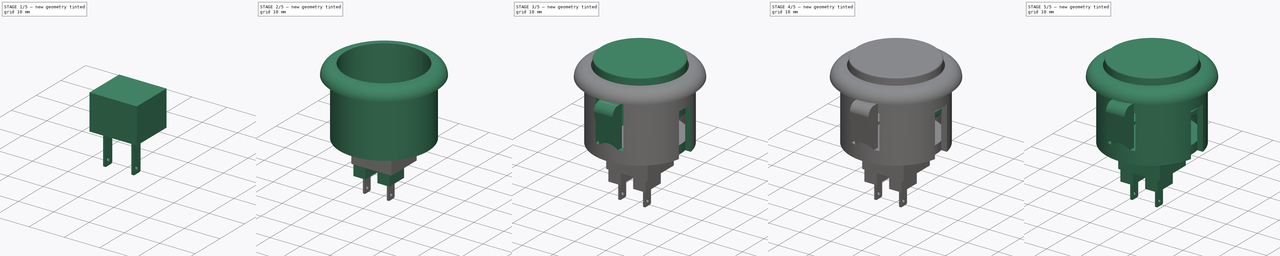
[diagram: build sequence overview — one tinted view per stage of 5, left to right]
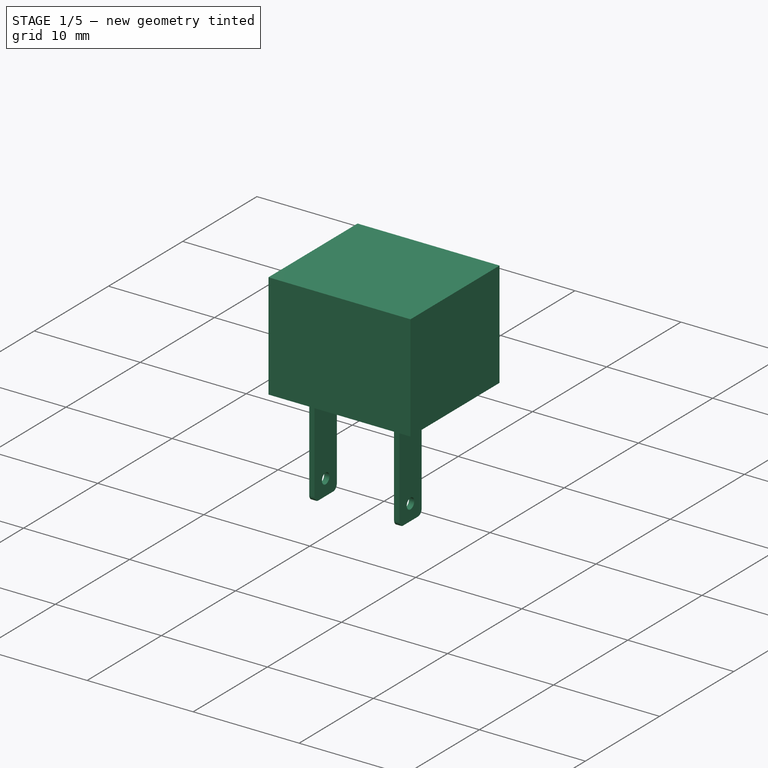
[diagram: stage 1 of 5 — iso view after this stage's code; geometry added in this stage tinted green]
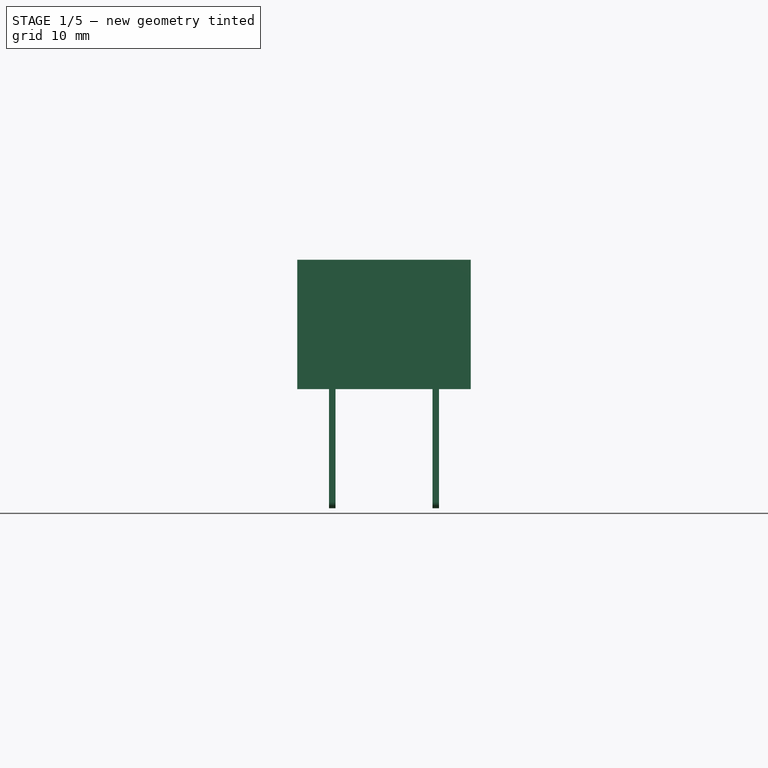
[diagram: stage 1 of 5 — front view after this stage's code; geometry added in this stage tinted green]
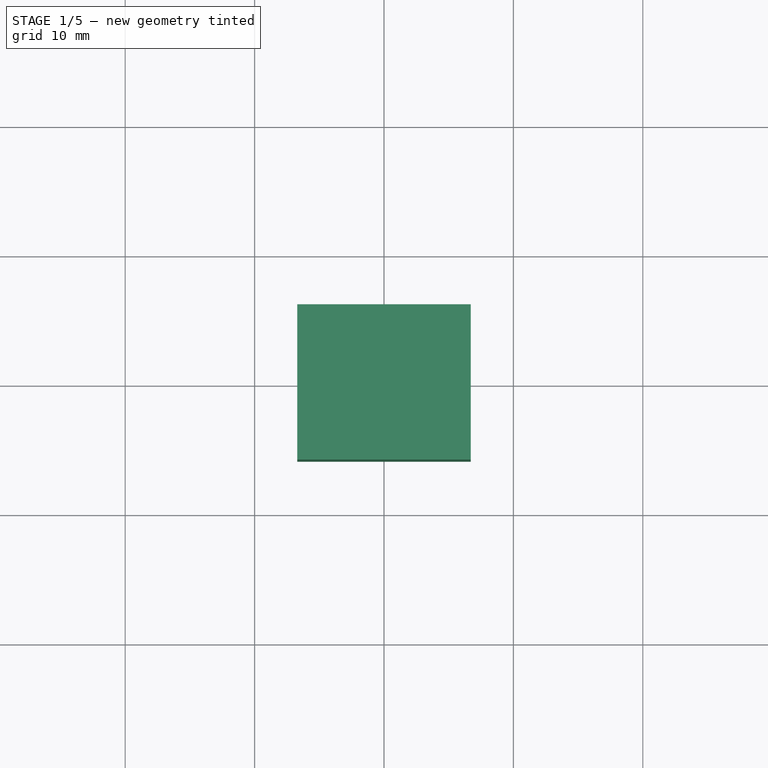
[diagram: stage 1 of 5 — top view after this stage's code; geometry added in this stage tinted green]
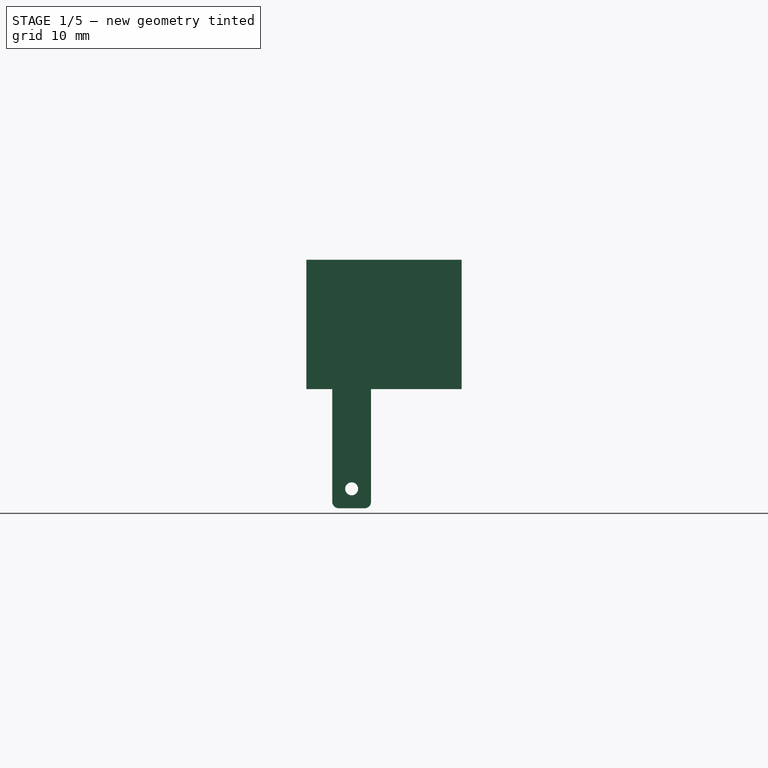
[diagram: stage 1 of 5 — right view after this stage's code; geometry added in this stage tinted green]
FCSTD DOCUMENT  (FreeCAD 0.18.1R)
Label: JustAButton
License: All rights reserved
LicenseURL: http://en.wikipedia.org/wiki/All_rights_reserved
objects: Sketcher::SketchObject×21, PartDesign::Pad×11, PartDesign::Pocket×9, PartDesign::Body×5, PartDesign::Fillet×2, PartDesign::Chamfer×1, PartDesign::Draft×1, PartDesign::Revolution×1, Part::MultiFuse×1
note: 73 computed .brp shape members not serialized (recipe doc carries the construction recipe); baked Part::Feature solids carry a one-line shape summary decoded from their .brp

FEATURE [PartDesign::Body] Body003  label="Shell"
  Group = -> [Sketch010,Revolution,Sketch011,Pocket004,Sketch012,Pocket005,Sketch013,Pocket006,Sketch014,Pocket007,Sketch015,Pad006]
  Origin = -> Origin003
  Tip = -> Pad006
FEATURE [Sketcher::SketchObject] Sketch016
  AttachmentOffset = pos=(0,0,-16.3) rot=(0,0,1;0rad)
  MapMode = 5
  Placement = pos=(0,0,-16.3) rot=(0,0,1;0rad)
  Support = -> [XY_Plane004]
  sketch-geometry (4):
    g0: LineSegment StartX=-6.7 StartY=-6 StartZ=0 EndX=6.7 EndY=-6 EndZ=0
    g1: LineSegment StartX=6.7 StartY=-6 StartZ=0 EndX=6.7 EndY=6 EndZ=0
    g2: LineSegment StartX=6.7 StartY=6 StartZ=0 EndX=-6.7 EndY=6 EndZ=0
    g3: LineSegment StartX=-6.7 StartY=6 StartZ=0 EndX=-6.7 EndY=-6 EndZ=0
  constraints (11):
    c: Coincident(g0,g1)
    c: Coincident(g1,g2)
    c: Coincident(g2,g3)
    c: Coincident(g3,g0)
    c: Horizontal(g0)
    c: Horizontal(g2)
    c: Vertical(g1)
    c: Vertical(g3)
    c: Symmetric(g0,g1,g-1)
    c: DistanceY(g1) = 6
    c: DistanceX(g0) = 6.7
FEATURE [PartDesign::Pad] Pad007
  Length = 10
  Length2 = 100
  Profile = -> Sketch016
  Reversed = true
  Type = 0
FEATURE [PartDesign::Body] Body004  label="SwitchBody"
  Group = -> [Sketch016,Pad007,Sketch017,Pad008,Sketch018,Pad009]
  Origin = -> Origin004
  Tip = -> Pad009
FEATURE [Sketcher::SketchObject] Sketch019
  AttachmentOffset = pos=(0,0,-26) rot=(0,0,1;0rad)
  MapMode = 5
  Placement = pos=(0,0,-26) rot=(0,0,1;0rad)
  Support = -> [XY_Plane005]
  sketch-geometry (4):
    g0: LineSegment StartX=-4.25 StartY=-1 StartZ=0 EndX=4.25 EndY=-1 EndZ=0
    g1: LineSegment StartX=4.25 StartY=-1 StartZ=0 EndX=4.25 EndY=-4 EndZ=0
    g2: LineSegment StartX=4.25 StartY=-4 StartZ=0 EndX=-4.25 EndY=-4 EndZ=0
    g3: LineSegment StartX=-4.25 StartY=-4 StartZ=0 EndX=-4.25 EndY=-1 EndZ=0
  constraints (11):
    c: Coincident(g0,g1)
    c: Coincident(g1,g2)
    c: Coincident(g2,g3)
    c: Coincident(g3,g0)
    c: Horizontal(g2)
    c: Vertical(g1)
    c: Vertical(g3)
    c: DistanceY(g1,g1) = 3
    c: DistanceY(g0,g-1) = 1
    c: Symmetric(g0,g0,g-2)
    c: DistanceX(g2,g1) = 8.5
FEATURE [PartDesign::Pad] Pad010
  Length = 1
  Length2 = 100
  Profile = -> Sketch019
  Type = 0
FEATURE [Sketcher::SketchObject] Sketch020
  ExternalGeometry = -> [Pad010]
  MapMode = 5
  Placement = pos=(0,0,-26) rot=(1,0,0;3.14159rad)
  Support = -> [Pad010]
  sketch-geometry (8):
    g0: LineSegment StartX=-4.25 StartY=4 StartZ=0 EndX=-3.75 EndY=4 EndZ=0
    g1: LineSegment StartX=-3.75 StartY=4 StartZ=0 EndX=-3.75 EndY=1 EndZ=0
    g2: LineSegment StartX=-3.75 StartY=1 StartZ=0 EndX=-4.25 EndY=1 EndZ=0
    g3: LineSegment StartX=-4.25 StartY=1 StartZ=0 EndX=-4.25 EndY=4 EndZ=0
    g4: LineSegment StartX=4.25 StartY=4 StartZ=0 EndX=3.75 EndY=4 EndZ=0
    g5: LineSegment StartX=3.75 StartY=4 StartZ=0 EndX=3.75 EndY=1 EndZ=0
    g6: LineSegment StartX=3.75 StartY=1 StartZ=0 EndX=4.25 EndY=1 EndZ=0
    g7: LineSegment StartX=4.25 StartY=1 StartZ=0 EndX=4.25 EndY=4 EndZ=0
  constraints (21):
    c: Coincident(g0,g1)
    c: Coincident(g1,g2)
    c: Coincident(g2,g3)
    c: Coincident(g3,g0)
    c: Horizontal(g0)
    c: Horizontal(g2)
    c: Vertical(g1)
    c: Coincident(g0,g-3)
    c: Coincident(g4,g5)
    c: Coincident(g5,g6)
    c: Coincident(g6,g7)
    c: Coincident(g7,g4)
    c: Horizontal(g4)
    c: Horizontal(g6)
    c: Vertical(g5)
    c: Vertical(g7)
    c: Coincident(g4,g-3)
    c: PointOnObject(g5,g-4)
    c: Equal(g0,g4)
    c: DistanceX(g0,g0) = 0.5
    c: Coincident(g2,g-4)
FEATURE [PartDesign::Pad] Pad011
  BaseFeature = -> Pad010
  Length = 9.5
  Length2 = 100
  Profile = -> Sketch020
  Type = 0
FEATURE [PartDesign::Fillet] Fillet001
  Base = -> Pad011 [Edge31,Edge15,Edge34,Edge21]
  BaseFeature = -> Pad011
  Radius = 0.5
FEATURE [Sketcher::SketchObject] Sketch021
  ExternalGeometry = -> [Fillet001]
  MapMode = 5
  Placement = pos=(4.25,0,0) rot=(0.57735,0.57735,0.57735;2.0944rad)
  Support = -> [Fillet001]
  sketch-geometry (3):
    g0: Circle CenterX=-2.5 CenterY=-34 CenterZ=0 NormalX=0 NormalY=0 NormalZ=1 AngleXU=0 Radius=0.5
    g1: GeomPoint X=-4 Y=-34 Z=0
    g2: GeomPoint X=-1 Y=-34 Z=0
  constraints (6):
    c: Diameter(g0) = 1
    c: PointOnObject(g1,g-3)
    c: PointOnObject(g2,g-4)
    c: DistanceY(g-3,g1) = 1
    c: Symmetric(g1,g2,g0)
    c: DistanceY(g1,g2) = 0
FEATURE [PartDesign::Pocket] Pocket008
  BaseFeature = -> Fillet001
  Length = 5
  Length2 = 100
  Profile = -> Sketch021
  Refine = true
  Type = 1
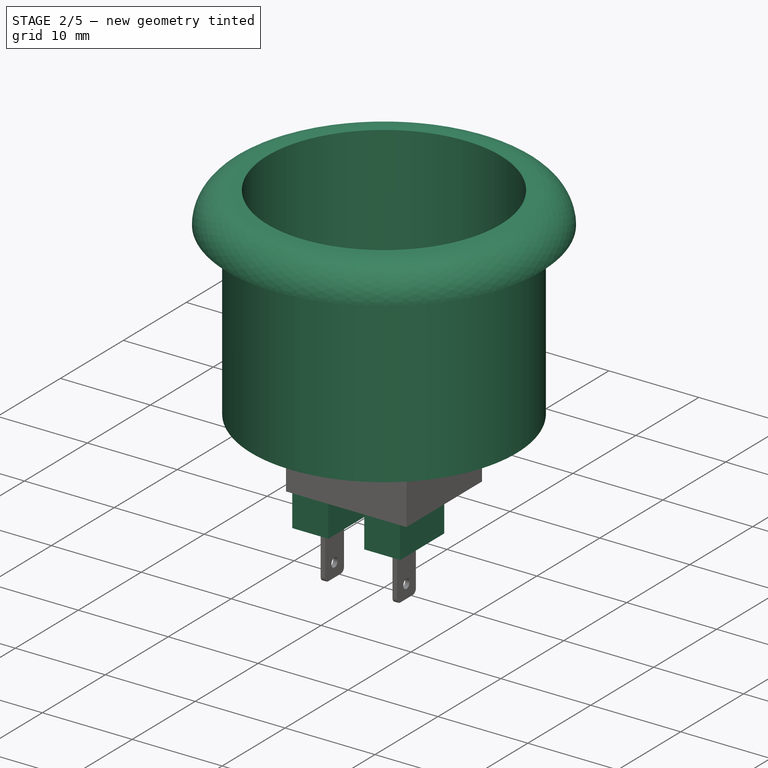
[diagram: stage 2 of 5 — iso view after this stage's code; geometry added in this stage tinted green]
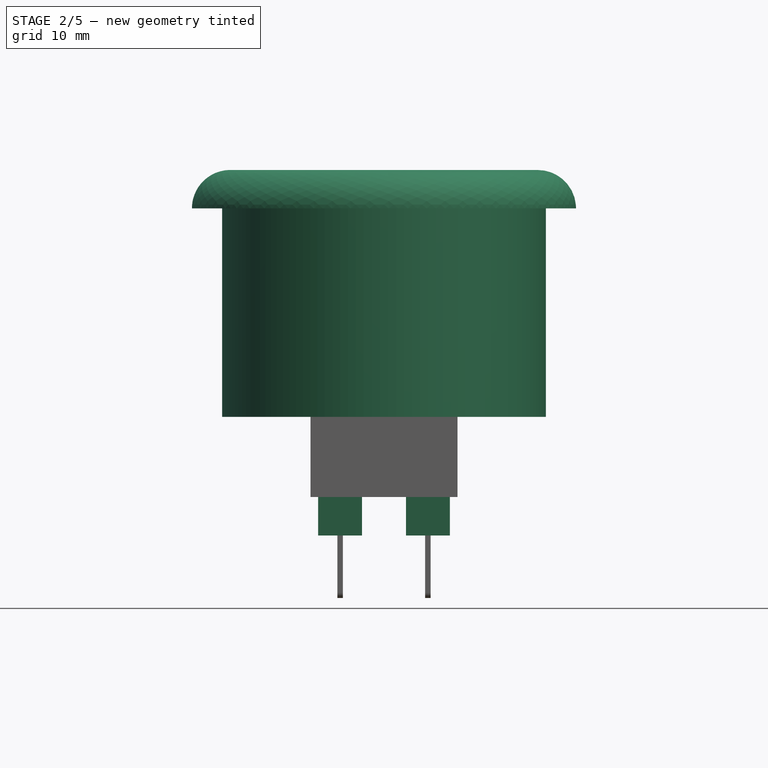
[diagram: stage 2 of 5 — front view after this stage's code; geometry added in this stage tinted green]
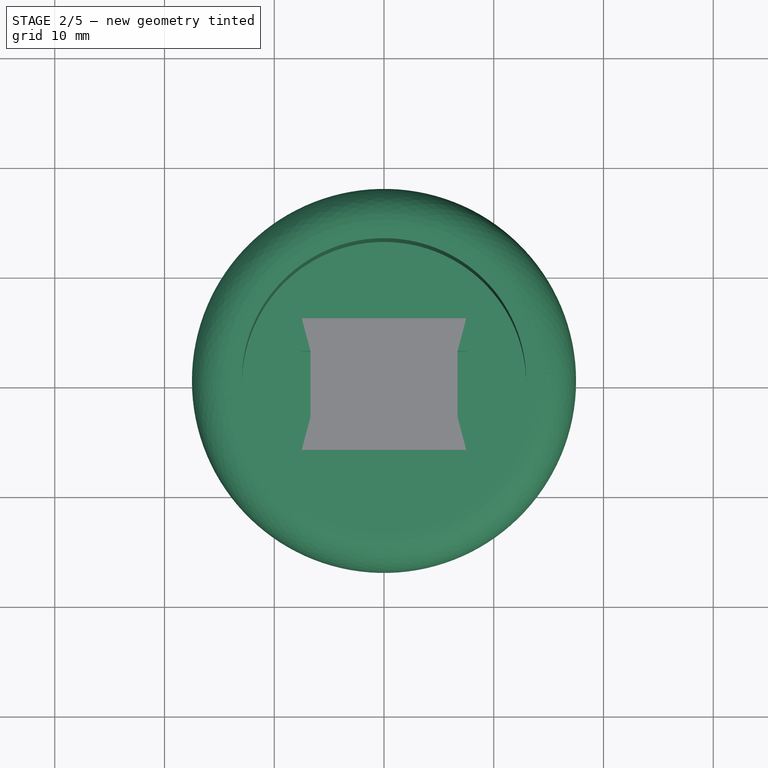
[diagram: stage 2 of 5 — top view after this stage's code; geometry added in this stage tinted green]
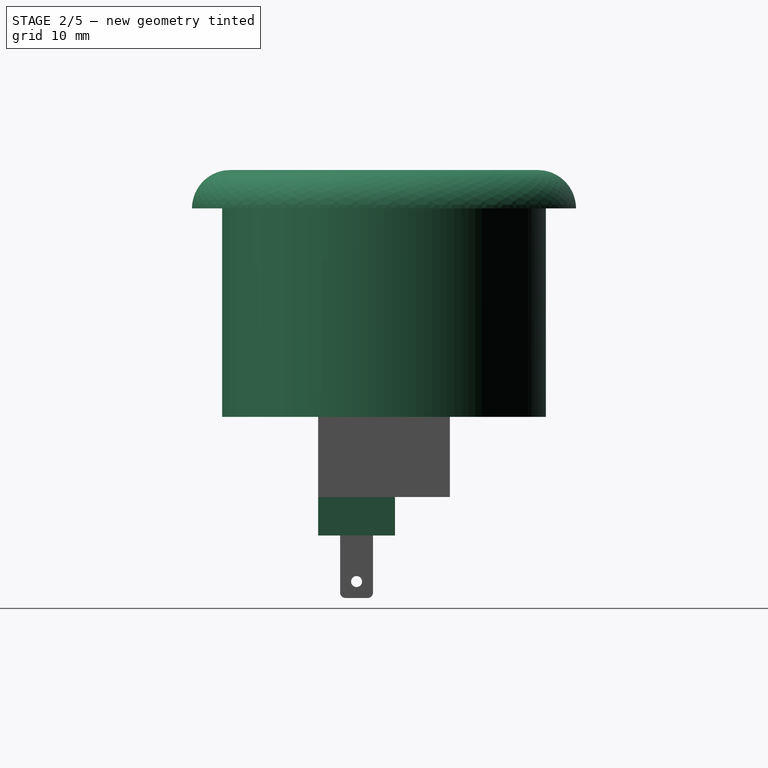
[diagram: stage 2 of 5 — right view after this stage's code; geometry added in this stage tinted green]
FEATURE [PartDesign::Body] Body002  label="button_top"
  Group = -> [Sketch006,Pad004,Sketch007,Pocket002,Fillet,Sketch008,Pocket003,Sketch009,Pad005,Chamfer,Draft]
  Origin = -> Origin002
  Tip = -> Draft
FEATURE [Sketcher::SketchObject] Sketch010
  MapMode = 5
  Placement = pos=(0,0,0) rot=(1,0,0;1.5708rad)
  Support = -> [XZ_Plane003]
  expr: Constraints[12] = 29.5 / 2
  sketch-geometry (8):
    g0: LineSegment StartX=-14.75 StartY=0 StartZ=0 EndX=-17.5 EndY=0 EndZ=0
    g1: ArcOfCircle CenterX=-14 CenterY=8.1e-14 CenterZ=0 NormalX=0 NormalY=0 NormalZ=1 AngleXU=0 Radius=3.5 StartAngle=1.5708 EndAngle=3.14159
    g2: LineSegment StartX=-14 StartY=3.5 StartZ=0 EndX=-12.95 EndY=3.5 EndZ=0
    g3: LineSegment StartX=-12.95 StartY=3.5 StartZ=0 EndX=-12.95 EndY=-16.25 EndZ=0
    g4: LineSegment StartX=-12.95 StartY=-16.25 StartZ=0 EndX=0 EndY=-16.25 EndZ=0
    g5: LineSegment StartX=0 StartY=-16.25 StartZ=0 EndX=-7e-16 EndY=-19 EndZ=0
    g6: LineSegment StartX=-7e-16 StartY=-19 StartZ=0 EndX=-14.75 EndY=-19 EndZ=0
    g7: LineSegment StartX=-14.75 StartY=0 StartZ=0 EndX=-14.75 EndY=-19 EndZ=0
  constraints (19):
    c: Horizontal(g0)
    c: Perpendicular(g0,g1) = 1.5708
    c: Tangent(g1,g2) = 1.5708
    c: Perpendicular(g2,g3) = 4.71239
    c: Vertical(g3)
    c: Perpendicular(g3,g4) = 1.5708
    c: PointOnObject(g4,g-2)
    c: Perpendicular(g4,g5) = 4.71239
    c: Perpendicular(g5,g6) = 4.71239
    c: Coincident(g7,g0)
    c: Vertical(g7)
    c: Coincident(g6,g7)
    c: DistanceX(g6,g5) = 14.75
    c: DistanceX(g0,g2) = 1.8
    c: DistanceY(g5,g4) = 2.75
    c: DistanceY(g6,g1) = 19
    c: DistanceY(g3,g2) = 19.75
    c: DistanceX(g0,g0) = 2.75
    c: DistanceY(g-1,g0) = 0
FEATURE [PartDesign::Revolution] Revolution
  Angle = 360
  Axis = (0,2e-16,1)
  Base = (0,0,0)
  Placement = pos=(0,0,0) rot=(1,0,0;1.5708rad)
  Profile = -> Sketch010
  ReferenceAxis = -> Sketch010 [V_Axis]
FEATURE [Sketcher::SketchObject] Sketch011
  MapMode = 5
  Placement = pos=(0,-8.4e-15,-19) rot=(1,0,0;3.14159rad)
  Support = -> [Revolution]
  sketch-geometry (4):
    g0: LineSegment StartX=-6.55 StartY=6 StartZ=0 EndX=6.55 EndY=6 EndZ=0
    g1: LineSegment StartX=6.55 StartY=6 StartZ=0 EndX=6.55 EndY=-6 EndZ=0
    g2: LineSegment StartX=6.55 StartY=-6 StartZ=0 EndX=-6.55 EndY=-6 EndZ=0
    g3: LineSegment StartX=-6.55 StartY=-6 StartZ=0 EndX=-6.55 EndY=6 EndZ=0
  constraints (11):
    c: Coincident(g0,g1)
    c: Coincident(g1,g2)
    c: Coincident(g2,g3)
    c: Coincident(g3,g0)
    c: Horizontal(g0)
    c: Horizontal(g2)
    c: Vertical(g1)
    c: Vertical(g3)
    c: DistanceX(g0,g0) = 13.1
    c: DistanceY(g1,g0) = 12
    c: Symmetric(g0,g1,g-1)
FEATURE [PartDesign::Pocket] Pocket004
  BaseFeature = -> Revolution
  Length = 5
  Length2 = 100
  Placement = pos=(0,0,0) rot=(1,0,0;1.5708rad)
  Profile = -> Sketch011
  Type = 1
FEATURE [Sketcher::SketchObject] Sketch012
  ExternalGeometry = -> [Pocket004]
  MapMode = 5
  Placement = pos=(0,-7.1e-15,-16.25) rot=(0,0,1;3.14159rad)
  Support = -> [Pocket004]
  sketch-geometry (4):
    g0: LineSegment StartX=-7.75 StartY=6 StartZ=0 EndX=7.75 EndY=6 EndZ=0
    g1: LineSegment StartX=7.75 StartY=6 StartZ=0 EndX=7.75 EndY=-6 EndZ=0
    g2: LineSegment StartX=7.75 StartY=-6 StartZ=0 EndX=-7.75 EndY=-6 EndZ=0
    g3: LineSegment StartX=-7.75 StartY=-6 StartZ=0 EndX=-7.75 EndY=6 EndZ=0
  constraints (11):
    c: Coincident(g0,g1)
    c: Coincident(g1,g2)
    c: Coincident(g2,g3)
    c: Coincident(g3,g0)
    c: Horizontal(g0)
    c: Horizontal(g2)
    c: Vertical(g1)
    c: Vertical(g3)
    c: DistanceX(g0,g0) = 15.5
    c: DistanceY(g-4,g2) = 0
    c: Symmetric(g0,g1,g-1)
FEATURE [PartDesign::Pocket] Pocket005
  BaseFeature = -> Pocket004
  Length = 1
  Length2 = 100
  Placement = pos=(0,0,0) rot=(1,0,0;1.5708rad)
  Profile = -> Sketch012
  Type = 0
FEATURE [Sketcher::SketchObject] Sketch017
  ExternalGeometry = -> [Pad007]
  MapMode = 5
  Placement = pos=(0,0,-16.3) rot=(0,0,1;0rad)
  Support = -> [Pad007]
  sketch-geometry (8):
    g0: LineSegment StartX=-7.5 StartY=6 StartZ=0 EndX=7.5 EndY=6 EndZ=0
    g1: LineSegment StartX=7.5 StartY=6 StartZ=0 EndX=7.5 EndY=3 EndZ=0
    g2: LineSegment StartX=7.5 StartY=3 StartZ=0 EndX=-7.5 EndY=3 EndZ=0
    g3: LineSegment StartX=-7.5 StartY=3 StartZ=0 EndX=-7.5 EndY=6 EndZ=0
    g4: LineSegment StartX=7.5 StartY=-3 StartZ=0 EndX=-7.5 EndY=-3 EndZ=0
    g5: LineSegment StartX=-7.5 StartY=-3 StartZ=0 EndX=-7.5 EndY=-6 EndZ=0
    g6: LineSegment StartX=-7.5 StartY=-6 StartZ=0 EndX=7.5 EndY=-6 EndZ=0
    g7: LineSegment StartX=7.5 StartY=-6 StartZ=0 EndX=7.5 EndY=-3 EndZ=0
  constraints (21):
    c: Coincident(g0,g1)
    c: Coincident(g1,g2)
    c: Coincident(g2,g3)
    c: Coincident(g3,g0)
    c: Horizontal(g0)
    c: Horizontal(g2)
    c: Vertical(g1)
    c: Vertical(g3)
    c: Coincident(g4,g5)
    c: Coincident(g5,g6)
    c: Coincident(g6,g7)
    c: Coincident(g7,g4)
    c: Horizontal(g6)
    c: Vertical(g5)
    c: Vertical(g7)
    c: Symmetric(g0,g6,g-1)
    c: Symmetric(g4,g1,g-1)
    c: DistanceY(g0,g-4) = 0
    c: Symmetric(g1,g4,g-1)
    c: DistanceX(g5,g6) = 15
    c: DistanceY(g6,g4) = 3
FEATURE [PartDesign::Pad] Pad008
  BaseFeature = -> Pad007
  Length = 1.5
  Length2 = 100
  Profile = -> Sketch017
  Refine = true
  Reversed = true
  Type = 0
FEATURE [Sketcher::SketchObject] Sketch018
  ExternalGeometry = -> [Pad008]
  MapMode = 5
  Placement = pos=(0,0,-26.3) rot=(1,0,0;3.14159rad)
  Support = -> [Pad008]
  sketch-geometry (8):
    g0: LineSegment StartX=-6 StartY=6 StartZ=0 EndX=-2 EndY=6 EndZ=0
    g1: LineSegment StartX=-2 StartY=6 StartZ=0 EndX=-2 EndY=-1 EndZ=0
    g2: LineSegment StartX=-2 StartY=-1 StartZ=0 EndX=-6 EndY=-1 EndZ=0
    g3: LineSegment StartX=-6 StartY=-1 StartZ=0 EndX=-6 EndY=6 EndZ=0
    g4: LineSegment StartX=2 StartY=6 StartZ=0 EndX=6 EndY=6 EndZ=0
    g5: LineSegment StartX=6 StartY=6 StartZ=0 EndX=6 EndY=-1 EndZ=0
    g6: LineSegment StartX=6 StartY=-1 StartZ=0 EndX=2 EndY=-1 EndZ=0
    g7: LineSegment StartX=2 StartY=-1 StartZ=0 EndX=2 EndY=6 EndZ=0
  constraints (23):
    c: Coincident(g0,g1)
    c: Coincident(g1,g2)
    c: Coincident(g2,g3)
    c: Coincident(g3,g0)
    c: Horizontal(g0)
    c: Horizontal(g2)
    c: Vertical(g1)
    c: Vertical(g3)
    c: Coincident(g4,g5)
    c: Coincident(g5,g6)
    c: Coincident(g6,g7)
    c: Coincident(g7,g4)
    c: Horizontal(g4)
    c: Horizontal(g6)
    c: Vertical(g5)
    c: Vertical(g7)
    c: Equal(g5,g1)
    c: Equal(g4,g0)
    c: PointOnObject(g0,g-3)
    c: Symmetric(g0,g4,g-2)
    c: DistanceX(g0,g0) = 4
    c: DistanceY(g1,g1) = 7
    c: DistanceX(g2,g5) = 12
FEATURE [PartDesign::Pad] Pad009
  BaseFeature = -> Pad008
  Length = 3.5
  Length2 = 100
  Profile = -> Sketch018
  Type = 0
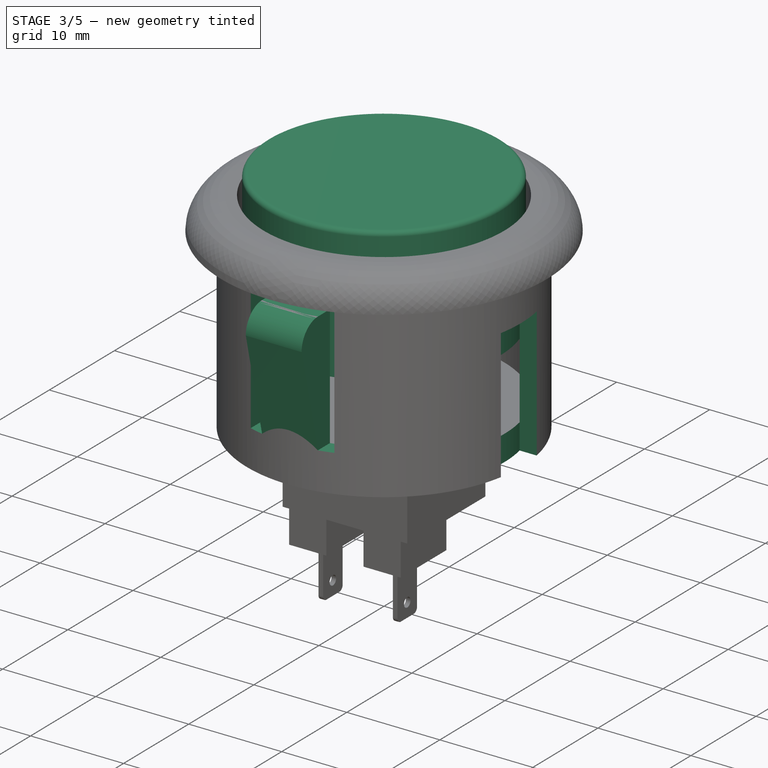
[diagram: stage 3 of 5 — iso view after this stage's code; geometry added in this stage tinted green]
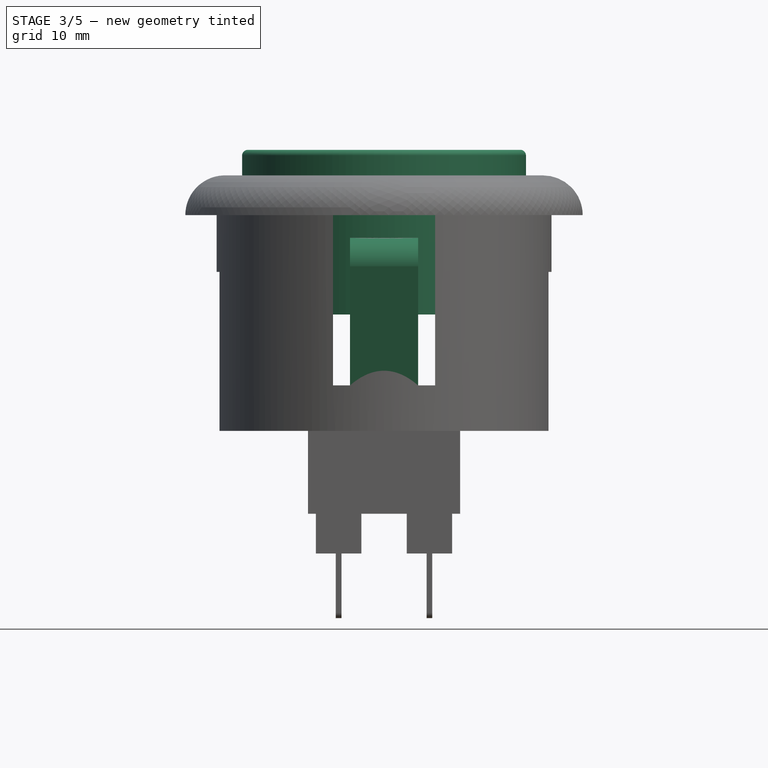
[diagram: stage 3 of 5 — front view after this stage's code; geometry added in this stage tinted green]
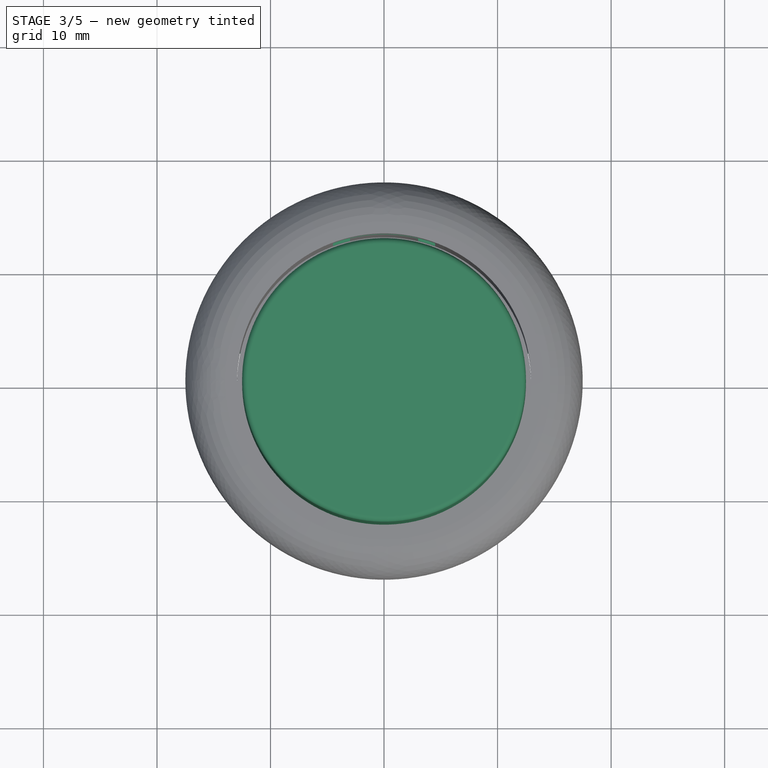
[diagram: stage 3 of 5 — top view after this stage's code; geometry added in this stage tinted green]
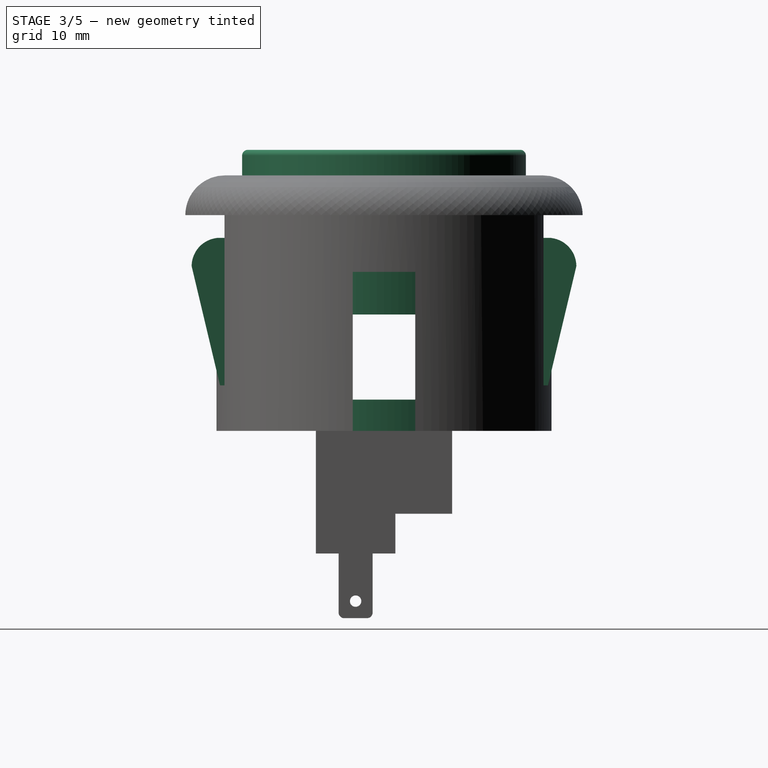
[diagram: stage 3 of 5 — right view after this stage's code; geometry added in this stage tinted green]
FEATURE [PartDesign::Body] Body  label="plunger"
  Group = -> [Sketch,Pad,Sketch002,Pocket,Sketch003,Pad002,Sketch004,Pocket001,Sketch005,Pad003]
  Origin = -> Origin
  Tip = -> Pad003
FEATURE [Sketcher::SketchObject] Sketch006
  AttachmentOffset = pos=(0,0,5.75) rot=(0,0,1;0rad)
  MapMode = 5
  Placement = pos=(0,0,5.75) rot=(0,0,1;0rad)
  Support = -> [XY_Plane002]
  sketch-geometry (1):
    g0: Circle CenterX=0 CenterY=0 CenterZ=0 NormalX=0 NormalY=0 NormalZ=1 AngleXU=0 Radius=12.5
  constraints (2):
    c: Coincident(g0,g-1)
    c: Diameter(g0) = 25
FEATURE [PartDesign::Pad] Pad004
  Length = 14.5
  Length2 = 100
  Profile = -> Sketch006
  Reversed = true
  Type = 0
FEATURE [Sketcher::SketchObject] Sketch007
  MapMode = 5
  Placement = pos=(0,0,-8.75) rot=(1,0,0;3.14159rad)
  Support = -> [Pad004]
  sketch-geometry (1):
    g0: Circle CenterX=0 CenterY=0 CenterZ=0 NormalX=0 NormalY=0 NormalZ=1 AngleXU=0 Radius=10.5
  constraints (2):
    c: Coincident(g0,g-1)
    c: Diameter(g0) = 21
FEATURE [PartDesign::Pocket] Pocket002
  BaseFeature = -> Pad004
  Length = 12
  Length2 = 100
  Profile = -> Sketch007
  Type = 0
FEATURE [PartDesign::Fillet] Fillet
  Base = -> Pocket002 [Edge2]
  BaseFeature = -> Pocket002
  Radius = 0.5
FEATURE [Sketcher::SketchObject] Sketch013
  ExternalGeometry = -> [Pocket005]
  MapMode = 5
  Placement = pos=(0,-8.4e-15,-19) rot=(1,0,0;3.14159rad)
  Support = -> [Pocket005]
  sketch-geometry (10):
    g0: ArcOfCircle CenterX=0 CenterY=0 CenterZ=0 NormalX=0 NormalY=0 NormalZ=1 AngleXU=0 Radius=12.95 StartAngle=2.92761 EndAngle=3.35558
    g1: ArcOfCircle CenterX=0 CenterY=0 CenterZ=0 NormalX=0 NormalY=0 NormalZ=1 AngleXU=0 Radius=14.75 StartAngle=2.95405 EndAngle=3.32913
    g2: LineSegment StartX=-14.4914 StartY=2.75 StartZ=0 EndX=-12.6546 EndY=2.75 EndZ=0
    g3: LineSegment StartX=14.4914 StartY=-2.75 StartZ=0 EndX=12.6546 EndY=-2.75 EndZ=0
    g4: GeomPoint X=-14.75 Y=0 Z=0
    g5: GeomPoint X=-12.95 Y=0 Z=0
    g6: LineSegment StartX=12.6546 StartY=2.75 StartZ=0 EndX=14.4914 EndY=2.75 EndZ=0
    g7: LineSegment StartX=-12.6546 StartY=-2.75 StartZ=0 EndX=-14.4914 EndY=-2.75 EndZ=0
    g8: ArcOfCircle CenterX=0 CenterY=0 CenterZ=0 NormalX=0 NormalY=0 NormalZ=1 AngleXU=0 Radius=12.95 StartAngle=6.0692 EndAngle=6.49717
    g9: ArcOfCircle CenterX=0 CenterY=0 CenterZ=0 NormalX=0 NormalY=0 NormalZ=1 AngleXU=0 Radius=14.75 StartAngle=6.09565 EndAngle=6.47072
  constraints (25):
    c: Coincident(g0,g-1)
    c: Coincident(g1,g0)
    c: Horizontal(g2)
    c: Horizontal(g3)
    c: PointOnObject(g4,g-3)
    c: PointOnObject(g5,g-4)
    c: Equal(g-3,g1)
    c: Equal(g0,g-4)
    c: Tangent(g2,g6)
    c: Tangent(g3,g7)
    c: Coincident(g0,g2)
    c: Coincident(g8,g6)
    c: Coincident(g1,g2)
    c: Coincident(g9,g6)
    c: Coincident(g0,g7)
    c: Coincident(g8,g3)
    c: Coincident(g0,g8)
    c: Equal(g1,g9)
    c: Coincident(g1,g7)
    c: Coincident(g9,g3)
    c: Coincident(g1,g9)
    c: Symmetric(g0,g3,g0)
    c: DistanceY(g1,g1) = 5.5
    c: PointOnObject(g5,g-1)
    c: PointOnObject(g4,g-1)
FEATURE [PartDesign::Pocket] Pocket006
  BaseFeature = -> Pocket005
  Length = 14
  Length2 = 100
  Placement = pos=(0,0,0) rot=(1,0,0;1.5708rad)
  Profile = -> Sketch013
  Type = 0
FEATURE [Sketcher::SketchObject] Sketch014
  MapMode = 5
  Placement = pos=(0,0,0) rot=(1,0,0;1.5708rad)
  Support = -> [XZ_Plane003]
  sketch-geometry (16):
    g0: LineSegment [constr] StartX=-3 StartY=-15 StartZ=0 EndX=-3 EndY=-2 EndZ=0
    g1: LineSegment [constr] StartX=-3 StartY=-2 StartZ=0 EndX=3 EndY=-2 EndZ=0
    g2: LineSegment [constr] StartX=3 StartY=-2 StartZ=0 EndX=3 EndY=-15 EndZ=0
    g3: LineSegment [constr] StartX=3 StartY=-15 StartZ=0 EndX=4.5 EndY=-15 EndZ=0
    g4: LineSegment [constr] StartX=4.5 StartY=-15 StartZ=0 EndX=4.5 EndY=0 EndZ=0
    g5: LineSegment [constr] StartX=4.5 StartY=0 StartZ=0 EndX=-4.5 EndY=0 EndZ=0
    g6: LineSegment [constr] StartX=-4.5 StartY=0 StartZ=0 EndX=-4.5 EndY=-15 EndZ=0
    g7: LineSegment [constr] StartX=-4.5 StartY=-15 StartZ=0 EndX=-3 EndY=-15 EndZ=0
    g8: LineSegment StartX=-4.5 StartY=0 StartZ=0 EndX=-4.5 EndY=-15 EndZ=0
    g9: LineSegment StartX=-4.5 StartY=-15 StartZ=0 EndX=-3 EndY=-15 EndZ=0
    g10: LineSegment StartX=-3 StartY=-15 StartZ=0 EndX=-3 EndY=-2 EndZ=0
    g11: LineSegment StartX=-3 StartY=-2 StartZ=0 EndX=3 EndY=-2 EndZ=0
    g12: LineSegment StartX=3 StartY=-2 StartZ=0 EndX=3 EndY=-15 EndZ=0
    g13: LineSegment StartX=3 StartY=-15 StartZ=0 EndX=4.5 EndY=-15 EndZ=0
    g14: LineSegment StartX=4.5 StartY=-15 StartZ=0 EndX=4.5 EndY=0 EndZ=0
    g15: LineSegment StartX=4.5 StartY=0 StartZ=0 EndX=-4.5 EndY=0 EndZ=0
  constraints (35):
    c: Perpendicular(g0,g1) = 4.71239
    c: Perpendicular(g1,g2) = 4.71239
    c: Perpendicular(g2,g3) = 1.5708
    c: Perpendicular(g3,g4) = 1.5708
    c: Perpendicular(g4,g5) = 1.5708
    c: Coincident(g6,g7)
    c: Coincident(g7,g0)
    c: Horizontal(g7)
    c: Equal(g7,g3)
    c: Equal(g2,g0)
    c: Coincident(g6,g5)
    c: Symmetric(g5,g4,g-2)
    c: Symmetric(g0,g1,g-2)
    c: PointOnObject(g4,g-1)
    c: DistanceY(g0,g5) = 2
    c: DistanceX(g6,g3) = 9
    c: DistanceX(g2,g3) = 1.5
    c: DistanceY(g6,g5) = 15
    c: Coincident(g5,g8)
    c: Coincident(g8,g6)
    c: Coincident(g8,g9)
    c: Coincident(g9,g0)
    c: Coincident(g9,g10)
    c: Coincident(g10,g0)
    c: Coincident(g10,g11)
    c: Coincident(g11,g1)
    c: Coincident(g11,g12)
    c: Vertical(g12)
    c: Coincident(g12,g13)
    c: Coincident(g13,g3)
    c: Horizontal(g13)
    c: Coincident(g13,g14)
    c: Coincident(g14,g4)
    c: Coincident(g14,g15)
    c: Coincident(g15,g8)
FEATURE [PartDesign::Pocket] Pocket007
  BaseFeature = -> Pocket006
  Length = 20
  Length2 = 100
  Midplane = true
  Placement = pos=(0,0,0) rot=(1,0,0;1.5708rad)
  Profile = -> Sketch014
  Reversed = true
  Type = 1
FEATURE [Sketcher::SketchObject] Sketch015
  ExternalGeometry = -> [Pocket007]
  MapMode = 5
  Placement = pos=(-3,0,-5e-16) rot=(0.707107,0,-0.707107;3.14159rad)
  Support = -> [Pocket007]
  sketch-geometry (6):
    g0: ArcOfCircle CenterX=4.5 CenterY=-14.4417 CenterZ=0 NormalX=0 NormalY=0 NormalZ=1 AngleXU=0 Radius=2.5 StartAngle=3.14159 EndAngle=4.71239
    g1: LineSegment StartX=4.5 StartY=-16.9417 StartZ=0 EndX=15 EndY=-14.4417 EndZ=0
    g2: LineSegment StartX=15 StartY=-14.4417 StartZ=0 EndX=2 EndY=-14.4417 EndZ=0
    g3: LineSegment StartX=15 StartY=14.4417 StartZ=0 EndX=2 EndY=14.4417 EndZ=0
    g4: ArcOfCircle CenterX=4.5 CenterY=14.4417 CenterZ=0 NormalX=0 NormalY=0 NormalZ=1 AngleXU=0 Radius=2.5 StartAngle=1.5708 EndAngle=3.14159
    g5: LineSegment StartX=4.5 StartY=16.9417 StartZ=0 EndX=15 EndY=14.4417 EndZ=0
  constraints (13):
    c: Perpendicular(g-4,g0) = 4.71239
    c: Coincident(g0,g1)
    c: Coincident(g1,g2)
    c: Coincident(g2,g0)
    c: Coincident(g-4,g1)
    c: Radius(g0) = 2.5
    c: DistanceX(g0,g0) = 0
    c: Perpendicular(g3,g4) = 1.5708
    c: Coincident(g4,g5)
    c: Coincident(g5,g3)
    c: Symmetric(g3,g1,g-1)
    c: Symmetric(g3,g0,g-1)
    c: Symmetric(g4,g0,g-1)
FEATURE [PartDesign::Pad] Pad006
  BaseFeature = -> Pocket007
  Length = 6
  Length2 = 100
  Placement = pos=(0,0,0) rot=(1,0,0;1.5708rad)
  Profile = -> Sketch015
  Reversed = true
  Type = 0
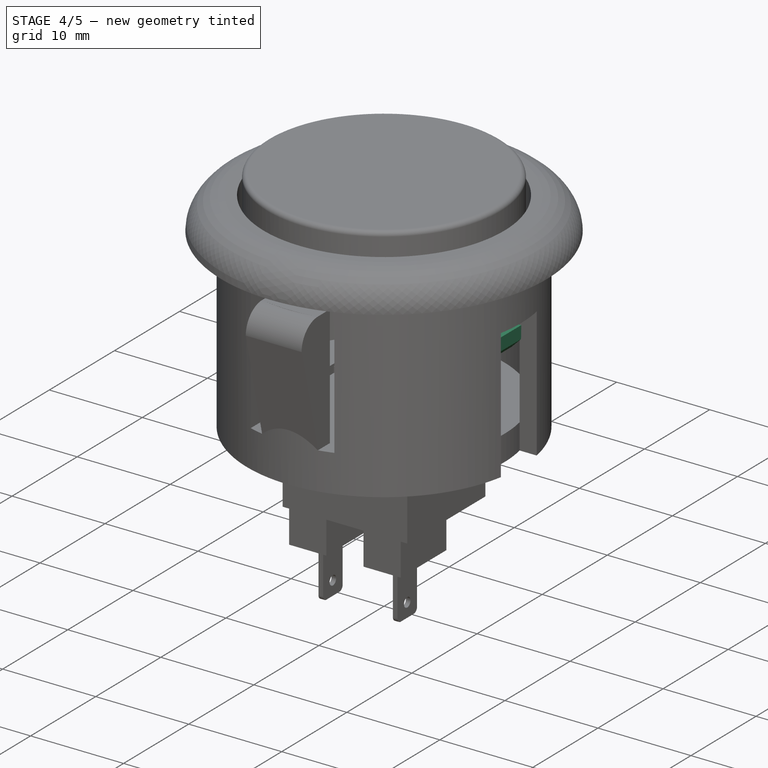
[diagram: stage 4 of 5 — iso view after this stage's code; geometry added in this stage tinted green]
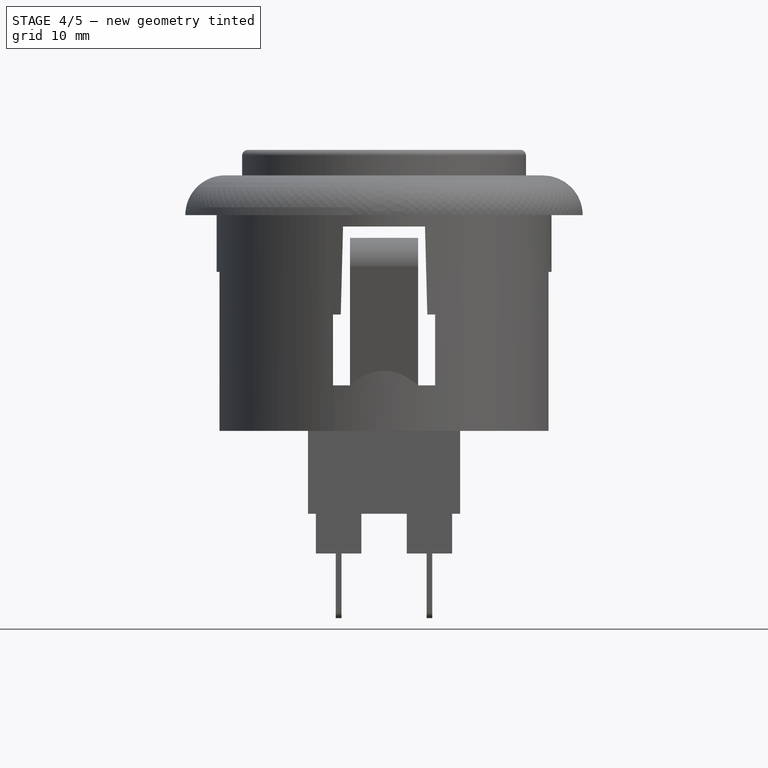
[diagram: stage 4 of 5 — front view after this stage's code; geometry added in this stage tinted green]
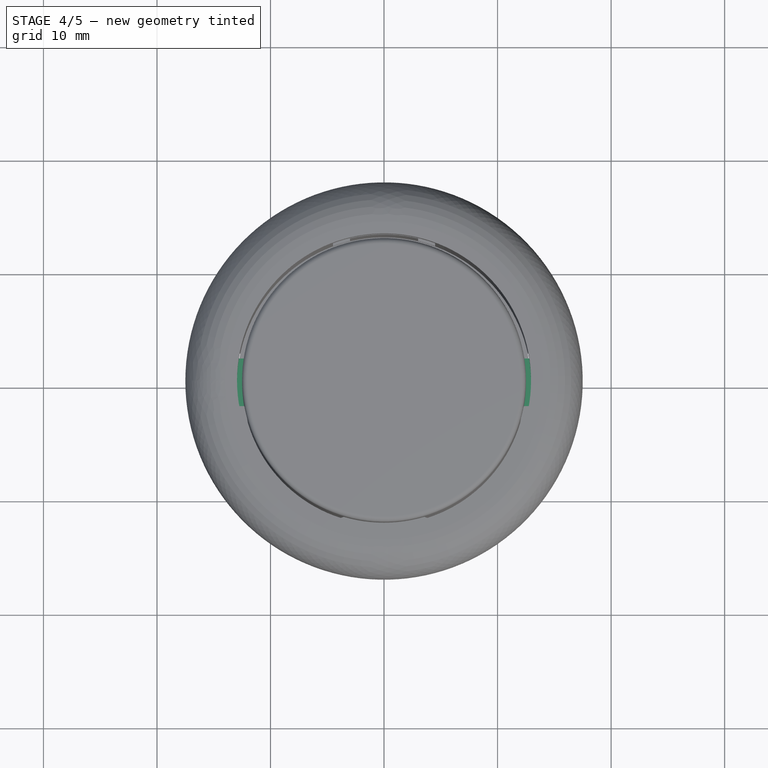
[diagram: stage 4 of 5 — top view after this stage's code; geometry added in this stage tinted green]
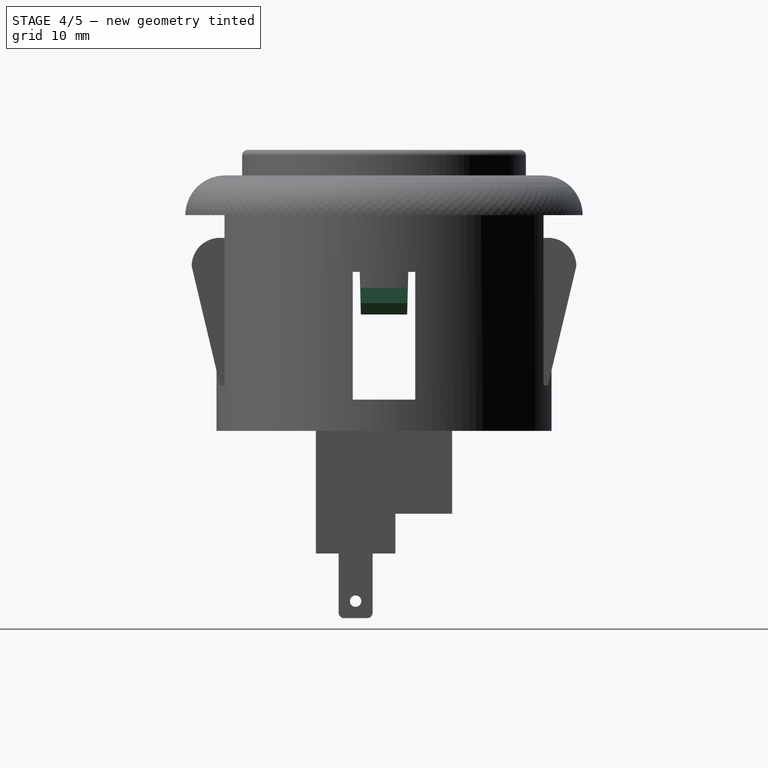
[diagram: stage 4 of 5 — right view after this stage's code; geometry added in this stage tinted green]
FEATURE [Sketcher::SketchObject] Sketch
  AttachmentOffset = pos=(0,0,-1) rot=(0,0,1;0rad)
  MapMode = 5
  Placement = pos=(0,0,-1) rot=(0,0,1;0rad)
  Support = -> [XY_Plane]
  sketch-geometry (1):
    g0: Circle CenterX=0 CenterY=0 CenterZ=0 NormalX=0 NormalY=0 NormalZ=1 AngleXU=0 Radius=10.45
  constraints (2):
    c: Coincident(g0,g-1)
    c: Diameter(g0) = 20.9  'plunger_D'
FEATURE [PartDesign::Pad] Pad
  Length = 3.15
  Length2 = 100
  Profile = -> Sketch
  Type = 0
FEATURE [Sketcher::SketchObject] Sketch008
  MapMode = 5
  Placement = pos=(0,0,-8.75) rot=(1,0,0;3.14159rad)
  Support = -> [Fillet]
  sketch-geometry (28):
    g0: GeomPoint X=-3.55 Y=3.3 Z=0
    g1: GeomPoint X=-3.55 Y=2.3 Z=0
    g2: GeomPoint X=-3.55 Y=-2.3 Z=0
    g3: GeomPoint X=-3.55 Y=-3.3 Z=0
    g4: GeomPoint X=3.55 Y=-3.3 Z=0
    g5: GeomPoint X=3.55 Y=-2.3 Z=0
    g6: GeomPoint X=3.55 Y=2.3 Z=0
    g7: GeomPoint X=3.55 Y=3.3 Z=0
    g8: LineSegment StartX=-3.55 StartY=13 StartZ=0 EndX=-3.55 EndY=3.3 EndZ=0
    g9: LineSegment StartX=-3.55 StartY=3.3 StartZ=0 EndX=-19.505 EndY=3.3 EndZ=0
    g10: LineSegment StartX=-19.505 StartY=3.3 StartZ=0 EndX=-19.505 EndY=2.3 EndZ=0
    g11: LineSegment StartX=-19.505 StartY=2.3 StartZ=0 EndX=-3.55 EndY=2.3 EndZ=0
    g12: LineSegment StartX=-3.55 StartY=2.3 StartZ=0 EndX=-3.55 EndY=-2.3 EndZ=0
    g13: LineSegment StartX=-3.55 StartY=-2.3 StartZ=0 EndX=-19.505 EndY=-2.3 EndZ=0
    g14: LineSegment StartX=-19.505 StartY=-2.3 StartZ=0 EndX=-19.505 EndY=-3.3 EndZ=0
    g15: LineSegment StartX=-19.505 StartY=-3.3 StartZ=0 EndX=-3.55 EndY=-3.3 EndZ=0
    g16: LineSegment StartX=-3.55 StartY=-3.3 StartZ=0 EndX=-3.55 EndY=-13 EndZ=0
    g17: LineSegment StartX=-3.55 StartY=-13 StartZ=0 EndX=3.55 EndY=-13 EndZ=0
    g18: LineSegment StartX=3.55 StartY=-13 StartZ=0 EndX=3.55 EndY=-3.3 EndZ=0
    g19: LineSegment StartX=3.55 StartY=-3.3 StartZ=0 EndX=19.505 EndY=-3.3 EndZ=0
    g20: LineSegment StartX=19.505 StartY=-3.3 StartZ=0 EndX=19.505 EndY=-2.3 EndZ=0
    g21: LineSegment StartX=19.505 StartY=-2.3 StartZ=0 EndX=3.55 EndY=-2.3 EndZ=0
    g22: LineSegment StartX=3.55 StartY=-2.3 StartZ=0 EndX=3.55 EndY=2.3 EndZ=0
    g23: LineSegment StartX=3.55 StartY=2.3 StartZ=0 EndX=19.505 EndY=2.3 EndZ=0
    g24: LineSegment StartX=19.505 StartY=2.3 StartZ=0 EndX=19.505 EndY=3.3 EndZ=0
    g25: LineSegment StartX=19.505 StartY=3.3 StartZ=0 EndX=3.55 EndY=3.3 EndZ=0
    g26: LineSegment StartX=3.55 StartY=3.3 StartZ=0 EndX=3.55 EndY=13 EndZ=0
    g27: LineSegment StartX=3.55 StartY=13 StartZ=0 EndX=-3.55 EndY=13 EndZ=0
  constraints (64):
    c: Symmetric(g8,g26,g-2)
    c: Symmetric(g8,g16,g-1)
    c: DistanceX(g8,g26) = 7.1
    c: DistanceY(g17,g26) = 26
    c: Coincident(g8,g0)
    c: Coincident(g8,g9)
    c: Horizontal(g9)
    c: Coincident(g9,g10)
    c: Vertical(g10)
    c: Coincident(g10,g11)
    c: Coincident(g11,g1)
    c: Coincident(g11,g12)
    c: Coincident(g12,g2)
    c: Coincident(g12,g13)
    c: Horizontal(g13)
    c: Coincident(g13,g14)
    c: Coincident(g14,g15)
    c: Coincident(g15,g3)
    c: Horizontal(g15)
    c: Coincident(g15,g16)
    c: Coincident(g16,g17)
    c: Coincident(g17,g18)
    c: Coincident(g18,g4)
    c: Coincident(g18,g19)
    c: Coincident(g19,g20)
    c: Coincident(g20,g21)
    c: Coincident(g21,g5)
    c: Coincident(g21,g22)
    c: Coincident(g22,g6)
    c: Coincident(g22,g23)
    c: Coincident(g23,g24)
    c: Coincident(g24,g25)
    c: Coincident(g25,g7)
    c: Horizontal(g25)
    c: Coincident(g25,g26)
    c: Coincident(g26,g27)
    c: Coincident(g27,g8)
    c: Equal(g26,g18)
    c: Equal(g18,g16)
    c: Equal(g16,g8)
    c: Equal(g12,g22)
    c: Equal(g14,g10)
    c: Equal(g10,g24)
    c: Equal(g24,g20)
    c: Vertical(g14)
    c: Symmetric(g5,g6,g-1)
    c: Horizontal(g11)
    c: Horizontal(g19)
    c: Vertical(g20)
    c: Vertical(g24)
    c: DistanceY(g14,g9) = 6.6
    c: Symmetric(g13,g20,g-2)
    c: DistanceY(g14,g13) = 1
    c: DistanceX(g9,g13) = 0
    c: DistanceX(g9,g24) = 39.01
    c: DistanceX(g20,g24) = 0
    c: Vertical(g18)
    c: Vertical(g16)
    c: Vertical(g8)
    c: Symmetric(g7,g0,g-2)
    c: DistanceX(g7,g6) = 0
    c: Vertical(g12)
    c: DistanceX(g0,g1) = 0
    c: DistanceX(g4,g5) = 0
FEATURE [PartDesign::Pocket] Pocket003
  BaseFeature = -> Fillet
  Length = 10
  Length2 = 100
  Profile = -> Sketch008
  Type = 0
FEATURE [Sketcher::SketchObject] Sketch009
  ExternalGeometry = -> [Pocket003]
  MapMode = 5
  Placement = pos=(0,0,-8.75) rot=(1,0,0;3.14159rad)
  Support = -> [Pocket003]
  sketch-geometry (8):
    g0: LineSegment StartX=-13.2866 StartY=2.3 StartZ=0 EndX=-12.2866 EndY=2.3 EndZ=0
    g1: LineSegment StartX=-12.2866 StartY=2.3 StartZ=0 EndX=-12.2866 EndY=-2.3 EndZ=0
    g2: LineSegment StartX=-12.2866 StartY=-2.3 StartZ=0 EndX=-13.2866 EndY=-2.3 EndZ=0
    g3: LineSegment StartX=-13.2866 StartY=-2.3 StartZ=0 EndX=-13.2866 EndY=2.3 EndZ=0
    g4: LineSegment StartX=12.2866 StartY=2.3 StartZ=0 EndX=13.2866 EndY=2.3 EndZ=0
    g5: LineSegment StartX=13.2866 StartY=2.3 StartZ=0 EndX=13.2866 EndY=-2.3 EndZ=0
    g6: LineSegment StartX=13.2866 StartY=-2.3 StartZ=0 EndX=12.2866 EndY=-2.3 EndZ=0
    g7: LineSegment StartX=12.2866 StartY=-2.3 StartZ=0 EndX=12.2866 EndY=2.3 EndZ=0
  constraints (20):
    c: Coincident(g0,g1)
    c: Coincident(g1,g2)
    c: Coincident(g2,g3)
    c: Coincident(g3,g0)
    c: Horizontal(g0)
    c: Horizontal(g2)
    c: Vertical(g3)
    c: Coincident(g4,g5)
    c: Coincident(g5,g6)
    c: Coincident(g6,g7)
    c: Coincident(g7,g4)
    c: Horizontal(g4)
    c: Vertical(g5)
    c: Symmetric(g0,g4,g-2)
    c: Symmetric(g4,g6,g-1)
    c: Symmetric(g0,g1,g-1)
    c: Equal(g0,g4)
    c: Equal(g3,g5)
    c: Coincident(g4,g-3)
    c: DistanceX(g2,g1) = 1
FEATURE [PartDesign::Pad] Pad005
  BaseFeature = -> Pocket003
  Length = 2.35
  Length2 = 100
  Profile = -> Sketch009
  Refine = true
  Reversed = true
  Type = 0
FEATURE [PartDesign::Chamfer] Chamfer
  Base = -> Pad005 [Edge88,Edge76]
  BaseFeature = -> Pad005
  Size = 1
FEATURE [PartDesign::Draft] Draft
  Angle = 1.5
  Base = -> Chamfer [Face13,Face27,Face29,Face23,Face2,Face19,Face17,Face21,Face25,Face5,Face11,Face15]
  BaseFeature = -> Chamfer
  NeutralPlane = -> Chamfer [Face26]
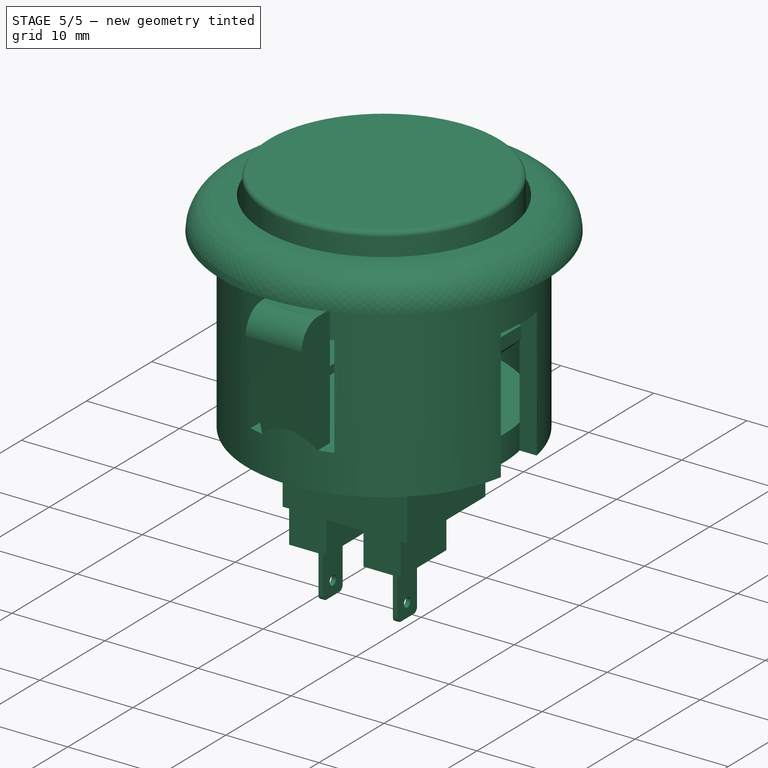
[diagram: stage 5 of 5 — iso view after this stage's code; geometry added in this stage tinted green]
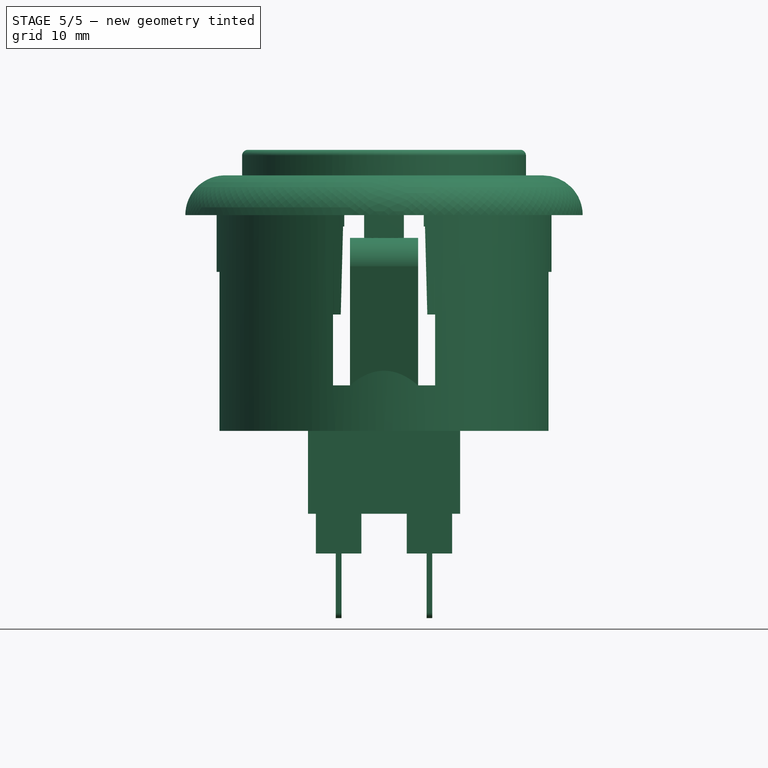
[diagram: stage 5 of 5 — front view after this stage's code; geometry added in this stage tinted green]
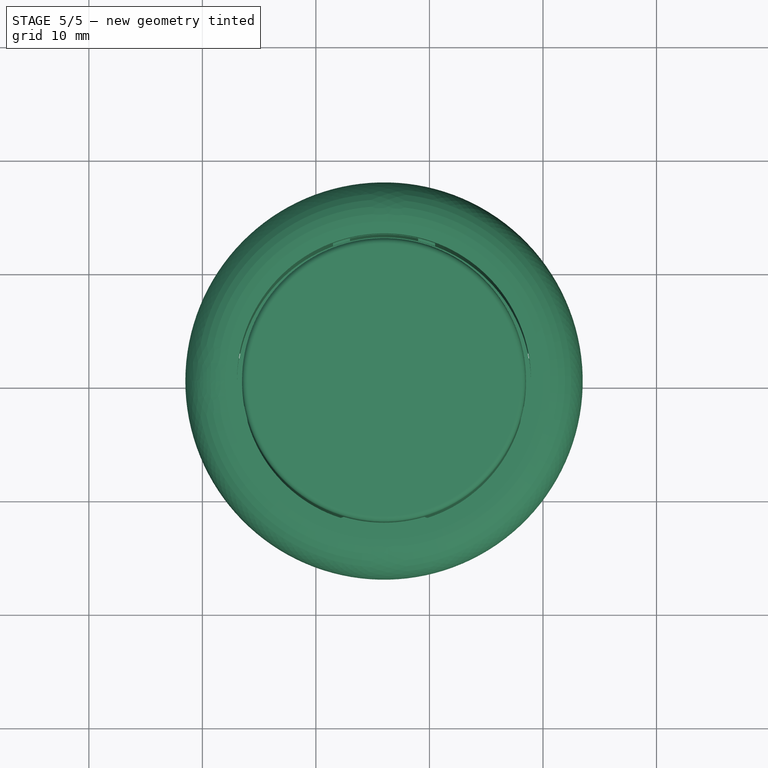
[diagram: stage 5 of 5 — top view after this stage's code; geometry added in this stage tinted green]
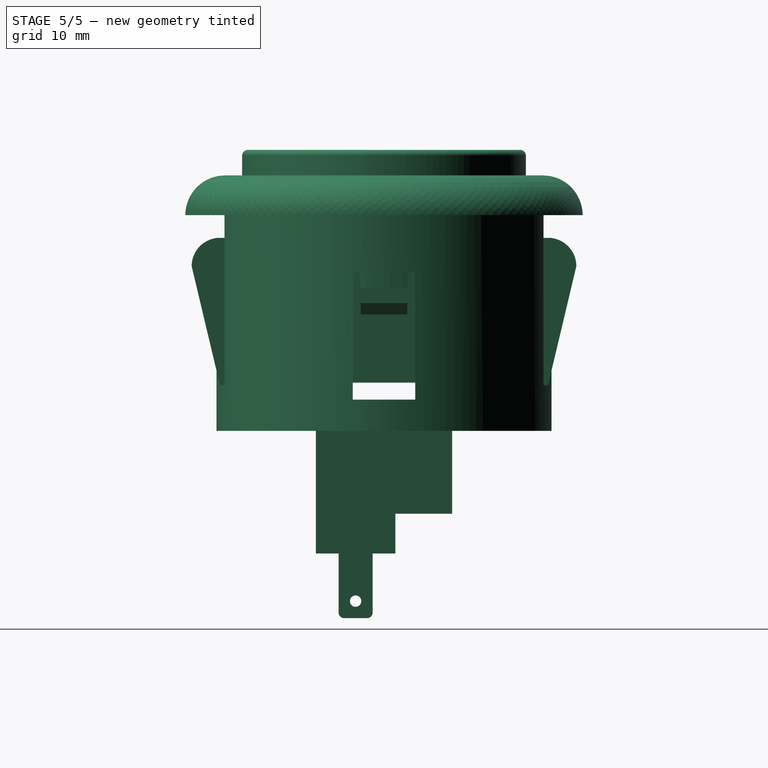
[diagram: stage 5 of 5 — right view after this stage's code; geometry added in this stage tinted green]
FEATURE [Sketcher::SketchObject] Sketch002
  ExternalGeometry = -> [Pad]
  MapMode = 5
  Placement = pos=(0,0,-1) rot=(1,0,0;3.14159rad)
  Support = -> [Pad]
  sketch-geometry (3):
    g0: Circle CenterX=0 CenterY=0 CenterZ=0 NormalX=0 NormalY=0 NormalZ=1 AngleXU=0 Radius=9.2
    g1: GeomPoint X=10.45 Y=0 Z=0
    g2: GeomPoint X=9.2 Y=0 Z=0
  constraints (6):
    c: Coincident(g0,g-1)
    c: PointOnObject(g1,g-1)
    c: PointOnObject(g2,g-1)
    c: PointOnObject(g2,g0)
    c: PointOnObject(g1,g-3)
    c: DistanceX(g2,g1) = 1.25
FEATURE [PartDesign::Pocket] Pocket
  BaseFeature = -> Pad
  Length = 1.25
  Length2 = 100
  Profile = -> Sketch002
  Type = 0
FEATURE [Sketcher::SketchObject] Sketch003
  MapMode = 5
  Placement = pos=(0,0,0.25) rot=(1,0,0;3.14159rad)
  Support = -> [Pocket]
  sketch-geometry (8):
    g0: LineSegment StartX=-1.75 StartY=3.8 StartZ=0 EndX=1.75 EndY=3.8 EndZ=0
    g1: LineSegment StartX=1.75 StartY=3.8 StartZ=0 EndX=1.75 EndY=-3.8 EndZ=0
    g2: LineSegment StartX=1.75 StartY=-3.8 StartZ=0 EndX=-1.75 EndY=-3.8 EndZ=0
    g3: LineSegment StartX=-1.75 StartY=-3.8 StartZ=0 EndX=-1.75 EndY=3.8 EndZ=0
    g4: LineSegment StartX=-0.95 StartY=-3 StartZ=0 EndX=0.95 EndY=-3 EndZ=0
    g5: LineSegment StartX=0.95 StartY=-3 StartZ=0 EndX=0.95 EndY=3 EndZ=0
    g6: LineSegment StartX=0.95 StartY=3 StartZ=0 EndX=-0.95 EndY=3 EndZ=0
    g7: LineSegment StartX=-0.95 StartY=3 StartZ=0 EndX=-0.95 EndY=-3 EndZ=0
  constraints (22):
    c: Coincident(g0,g1)
    c: Coincident(g1,g2)
    c: Coincident(g2,g3)
    c: Coincident(g3,g0)
    c: Horizontal(g0)
    c: Horizontal(g2)
    c: Vertical(g1)
    c: Vertical(g3)
    c: Coincident(g4,g5)
    c: Coincident(g5,g6)
    c: Coincident(g6,g7)
    c: Coincident(g7,g4)
    c: Horizontal(g4)
    c: Vertical(g5)
    c: DistanceX(g0,g6) = 0.8
    c: DistanceX(g5,g0) = 0.8
    c: DistanceY(g6,g0) = 0.8
    c: DistanceY(g2,g4) = 0.8
    c: Symmetric(g6,g5,g-2)
    c: Symmetric(g6,g4,g-1)
    c: DistanceY(g1,g0) = 7.6
    c: DistanceX(g2,g1) = 3.5
FEATURE [PartDesign::Pad] Pad002
  BaseFeature = -> Pocket
  Length = 15
  Length2 = 100
  Profile = -> Sketch003
  Type = 0
FEATURE [Sketcher::SketchObject] Sketch004
  MapMode = 5
  Placement = pos=(0,0,-1) rot=(1,0,0;3.14159rad)
  Support = -> [Pad002]
  sketch-geometry (8):
    g0: LineSegment StartX=-3.5 StartY=11.5 StartZ=0 EndX=3.5 EndY=11.5 EndZ=0
    g1: LineSegment StartX=3.5 StartY=11.5 StartZ=0 EndX=3.5 EndY=6.5 EndZ=0
    g2: LineSegment StartX=3.5 StartY=6.5 StartZ=0 EndX=-3.5 EndY=6.5 EndZ=0
    g3: LineSegment StartX=-3.5 StartY=6.5 StartZ=0 EndX=-3.5 EndY=11.5 EndZ=0
    g4: LineSegment StartX=-3.5 StartY=-6.5 StartZ=0 EndX=3.5 EndY=-6.5 EndZ=0
    g5: LineSegment StartX=3.5 StartY=-6.5 StartZ=0 EndX=3.5 EndY=-11.5 EndZ=0
    g6: LineSegment StartX=3.5 StartY=-11.5 StartZ=0 EndX=-3.5 EndY=-11.5 EndZ=0
    g7: LineSegment StartX=-3.5 StartY=-11.5 StartZ=0 EndX=-3.5 EndY=-6.5 EndZ=0
  constraints (22):
    c: Coincident(g0,g1)
    c: Coincident(g1,g2)
    c: Coincident(g2,g3)
    c: Coincident(g3,g0)
    c: Horizontal(g2)
    c: Vertical(g1)
    c: Vertical(g3)
    c: Coincident(g4,g5)
    c: Coincident(g5,g6)
    c: Coincident(g6,g7)
    c: Coincident(g7,g4)
    c: Horizontal(g4)
    c: Horizontal(g6)
    c: Vertical(g5)
    c: Vertical(g7)
    c: Equal(g0,g4)
    c: Equal(g3,g7)
    c: Symmetric(g2,g4,g-1)
    c: Symmetric(g0,g0,g-2)
    c: DistanceY(g1,g0) = 5
    c: DistanceX(g2,g1) = 7
    c: DistanceY(g4,g1) = 13
FEATURE [PartDesign::Pocket] Pocket001
  BaseFeature = -> Pad002
  Length = 1.2
  Length2 = 100
  Profile = -> Sketch004
  Type = 0
FEATURE [Sketcher::SketchObject] Sketch005
  ExternalGeometry = -> [Pocket001]
  MapMode = 5
  Placement = pos=(0,0,-1) rot=(1,0,0;3.14159rad)
  Support = -> [Pocket001]
  sketch-geometry (16):
    g0: LineSegment StartX=9.93177 StartY=3.25 StartZ=0 EndX=11 EndY=3.25 EndZ=0
    g1: LineSegment StartX=11 StartY=3.25 StartZ=0 EndX=11 EndY=2.5 EndZ=0
    g2: LineSegment StartX=11 StartY=2.5 StartZ=0 EndX=9.93177 EndY=2.5 EndZ=0
    g3: LineSegment StartX=9.93177 StartY=2.5 StartZ=0 EndX=9.93177 EndY=3.25 EndZ=0
    g4: LineSegment StartX=9.93177 StartY=-2.5 StartZ=0 EndX=11 EndY=-2.5 EndZ=0
    g5: LineSegment StartX=11 StartY=-2.5 StartZ=0 EndX=11 EndY=-3.25 EndZ=0
    g6: LineSegment StartX=11 StartY=-3.25 StartZ=0 EndX=9.93177 EndY=-3.25 EndZ=0
    g7: LineSegment StartX=9.93177 StartY=-3.25 StartZ=0 EndX=9.93177 EndY=-2.5 EndZ=0
    g8: LineSegment StartX=-11 StartY=3.25 StartZ=0 EndX=-9.93177 EndY=3.25 EndZ=0
    g9: LineSegment StartX=-9.93177 StartY=3.25 StartZ=0 EndX=-9.93177 EndY=2.5 EndZ=0
    g10: LineSegment StartX=-9.93177 StartY=2.5 StartZ=0 EndX=-11 EndY=2.5 EndZ=0
    g11: LineSegment StartX=-11 StartY=2.5 StartZ=0 EndX=-11 EndY=3.25 EndZ=0
    g12: LineSegment StartX=-11 StartY=-2.5 StartZ=0 EndX=-9.93177 EndY=-2.5 EndZ=0
    g13: LineSegment StartX=-9.93177 StartY=-2.5 StartZ=0 EndX=-9.93177 EndY=-3.25 EndZ=0
    g14: LineSegment StartX=-9.93177 StartY=-3.25 StartZ=0 EndX=-11 EndY=-3.25 EndZ=0
    g15: LineSegment StartX=-11 StartY=-3.25 StartZ=0 EndX=-11 EndY=-2.5 EndZ=0
  constraints (45):
    c: Coincident(g0,g1)
    c: Coincident(g1,g2)
    c: Coincident(g2,g3)
    c: Coincident(g3,g0)
    c: Horizontal(g0)
    c: Horizontal(g2)
    c: Vertical(g1)
    c: Vertical(g3)
    c: Coincident(g4,g5)
    c: Coincident(g5,g6)
    c: Coincident(g6,g7)
    c: Coincident(g7,g4)
    c: Horizontal(g4)
    c: Horizontal(g6)
    c: Vertical(g5)
    c: Vertical(g7)
    c: Coincident(g8,g9)
    c: Coincident(g9,g10)
    c: Coincident(g10,g11)
    c: Coincident(g11,g8)
    c: Horizontal(g8)
    c: Horizontal(g10)
    c: Vertical(g9)
    c: Vertical(g11)
    c: Coincident(g12,g13)
    c: Coincident(g13,g14)
    c: Coincident(g14,g15)
    c: Coincident(g15,g12)
    c: Horizontal(g12)
    c: Horizontal(g14)
    c: Vertical(g13)
    c: Vertical(g15)
    c: Equal(g11,g15)
    c: Equal(g15,g5)
    c: Equal(g5,g1)
    c: Equal(g8,g0)
    c: Equal(g0,g4)
    c: Equal(g4,g12)
    c: Symmetric(g10,g12,g-1)
    c: Symmetric(g1,g4,g-1)
    c: Symmetric(g14,g5,g-2)
    c: DistanceY(g1,g1) = 0.75
    c: DistanceY(g12,g10) = 5
    c: DistanceX(g8,g0) = 22
    c: PointOnObject(g6,g-5)
FEATURE [PartDesign::Pad] Pad003
  BaseFeature = -> Pocket001
  Length = 1.15
  Length2 = 100
  Profile = -> Sketch005
  Reversed = true
  Type = 0
FEATURE [PartDesign::Body] Body005  label="Pins"
  Group = -> [Sketch019,Pad010,Sketch020,Pad011,Fillet001,Sketch021,Pocket008]
  Origin = -> Origin005
  Tip = -> Pocket008
FEATURE [Part::MultiFuse] Fusion
  Placement = pos=(-54,0,22) rot=(0,0,1;0rad)
  Shapes = -> [Body002,Body003,Body004,Body,Body005]
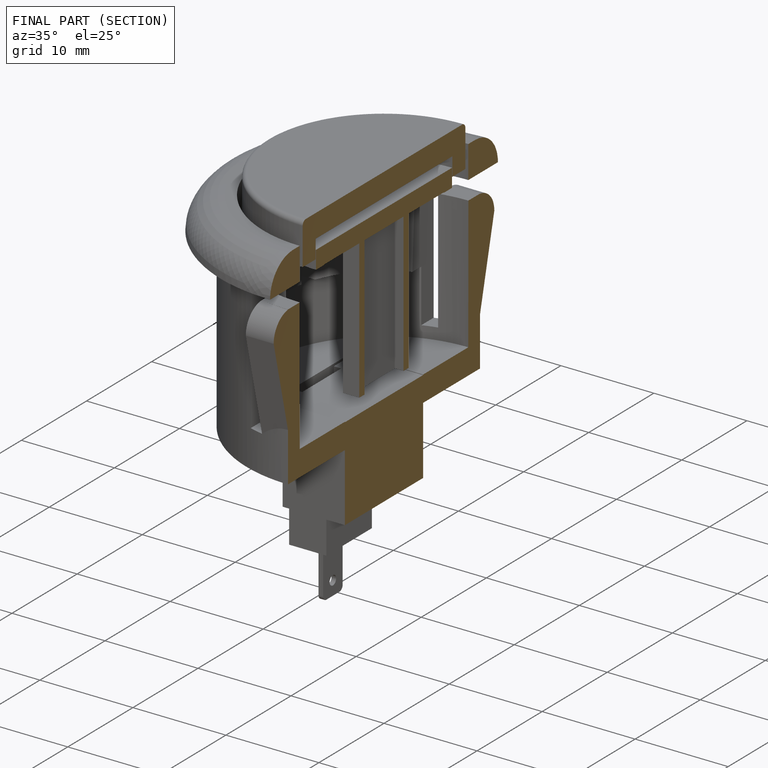
[diagram: finished part — half-section view (interior)]
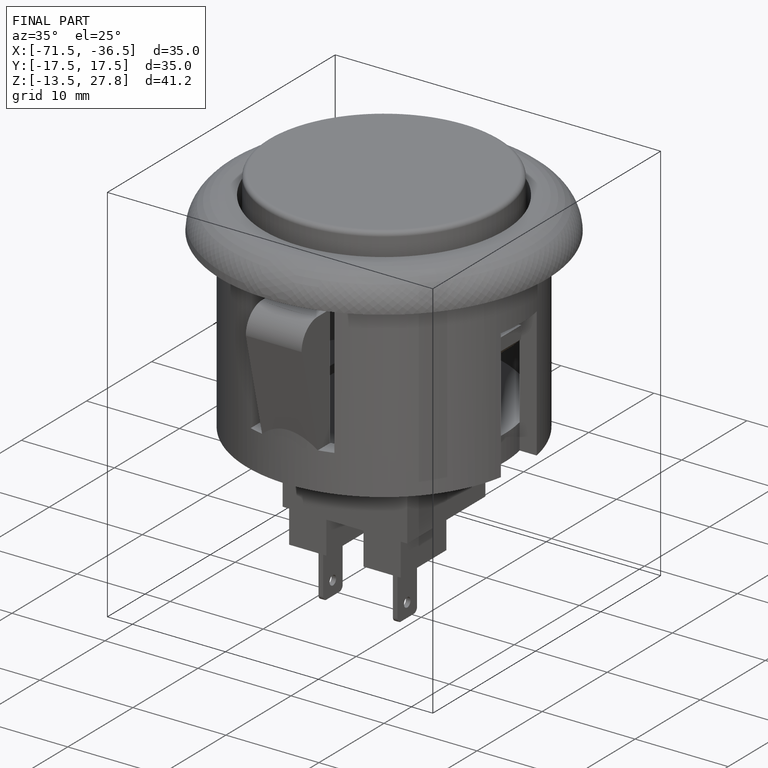
[diagram: finished part — iso view with bounding-box wireframe]
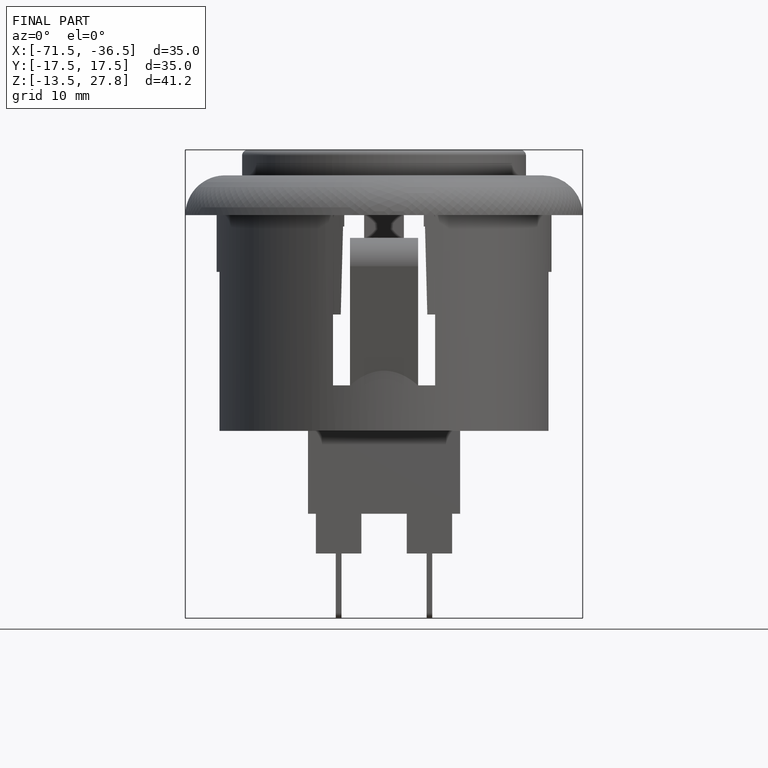
[diagram: finished part — front view with bounding-box wireframe]
